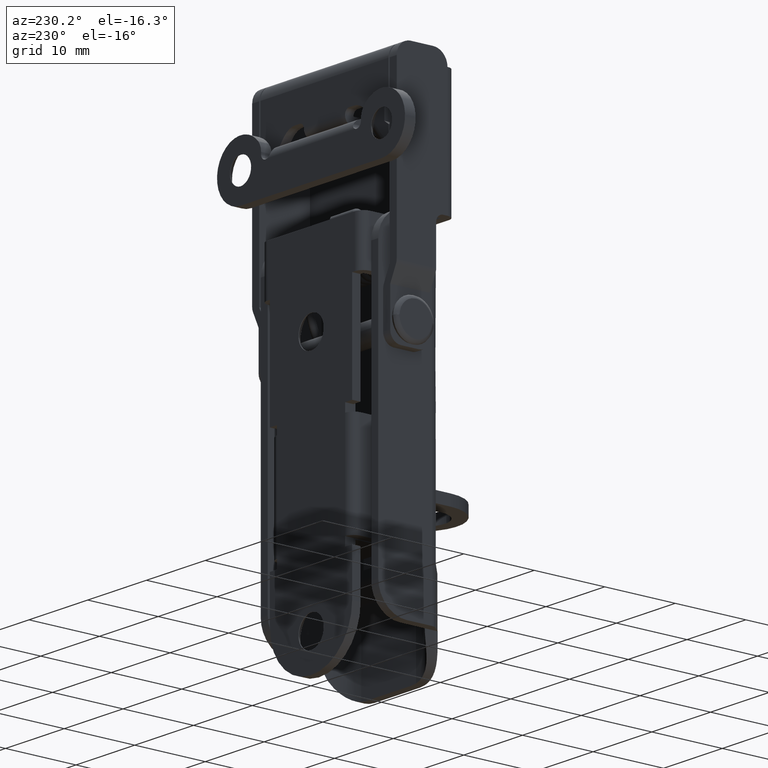
[diagram: clean part render]
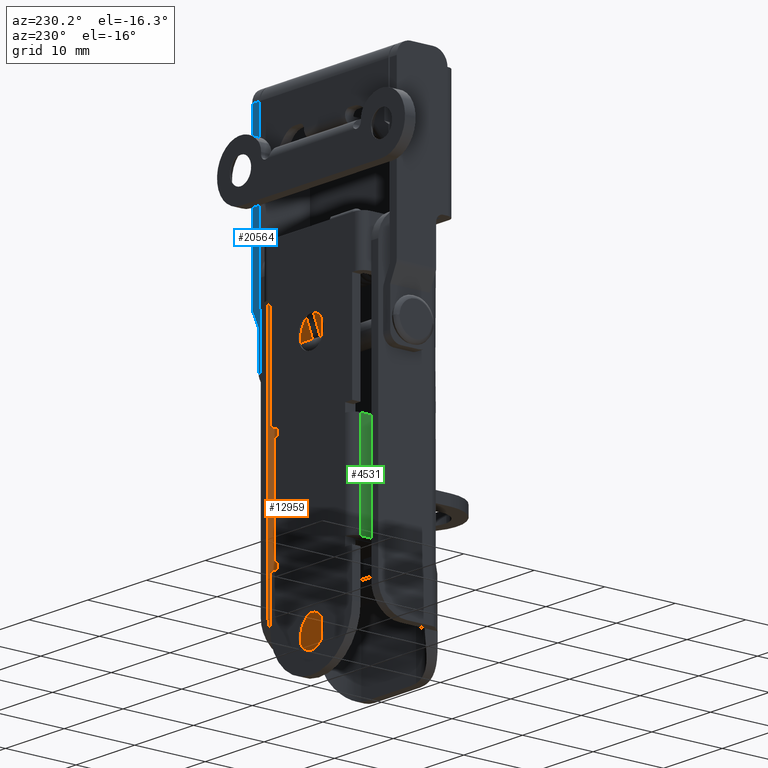
[diagram: same view with three faces highlighted in distinct colors, each labeled with its STEP entity id]
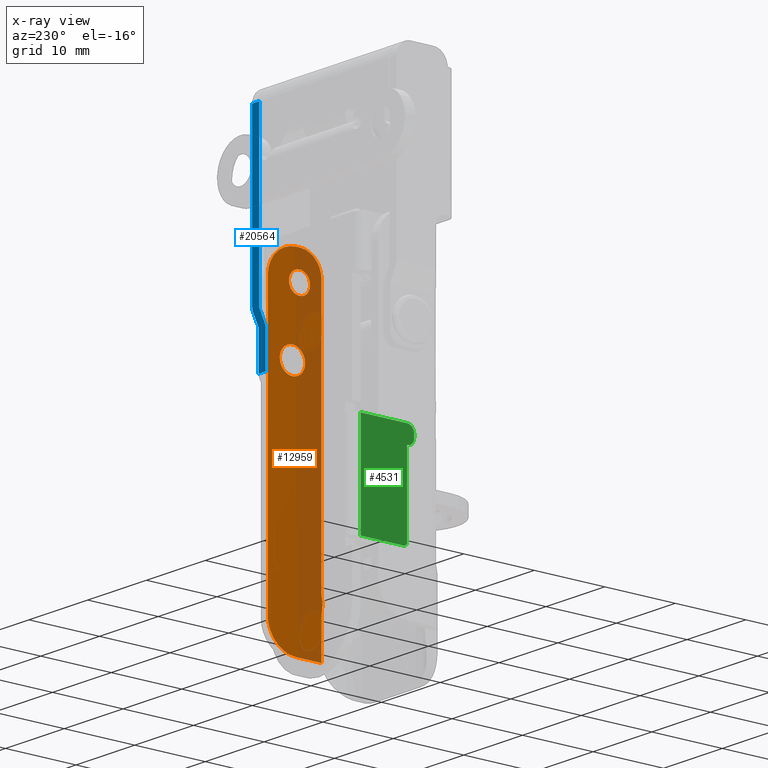
[diagram: x-ray of the same camera — body ghosted, the three highlighted faces saturated]
A machine part, auxiliary view with three faces highlighted in distinct colors.
The next image is the same camera in x-ray (body ghosted, the three faces saturated) — at least one of them is partly hidden behind the body in this view.
Their STEP definitions:

[orange] entity #12959 — the highlighted face is a freeform B-spline surface patch.
#9966=CARTESIAN_POINT('',(8.800000000000139,-2.900068538486594,-0.415707764269913));
#9967=VERTEX_POINT('',#9966);
#9968=CARTESIAN_POINT('',(8.800000000000141,-4.699999999998850,-2.200000000000205));
#9969=VERTEX_POINT('',#9968);
#9970=CARTESIAN_POINT('',(8.800000000000139,-2.900068538486594,-0.415707764269913));
#9971=CARTESIAN_POINT('',(8.800000000000139,-2.915639821297316,-2.200000000000204));
#9972=CARTESIAN_POINT('',(8.800000000000141,-4.699999999998850,-2.200000000000205));
#9980=(BOUNDED_CURVE()B_SPLINE_CURVE(2,(#9970,#9971,#9972),.UNSPECIFIED.,.F.,.U.)B_SPLINE_CURVE_WITH_KNOTS((3,3),(0.751539894371454,1.0),.UNSPECIFIED.)CURVE()GEOMETRIC_REPRESENTATION_ITEM()RATIONAL_B_SPLINE_CURVE((0.996414028016012,0.708910879662898,1.0))REPRESENTATION_ITEM(''));
#9981=EDGE_CURVE('',#9967,#9969,#9980,.T.);
#9983=CARTESIAN_POINT('',(8.800000000000141,-6.499931461511107,-0.384292235730496));
#9984=VERTEX_POINT('',#9983);
#9985=CARTESIAN_POINT('',(8.800000000000141,-4.699999999998850,-2.200000000000205));
#9986=CARTESIAN_POINT('',(8.800000000000141,-6.499999999998851,-2.200000000000205));
#9987=CARTESIAN_POINT('',(8.800000000000141,-6.499999999998851,-0.400000000000205));
#9988=CARTESIAN_POINT('',(8.800000000000141,-6.499999999998850,-0.392145968336613));
#9989=CARTESIAN_POINT('',(8.800000000000141,-6.499931461511106,-0.384292235730496));
#9997=(BOUNDED_CURVE()B_SPLINE_CURVE(2,(#9985,#9986,#9987,#9988,#9989),.UNSPECIFIED.,.F.,.U.)B_SPLINE_CURVE_WITH_KNOTS((3,2,3),(0.0,0.250000000000000,0.251539894371454),.UNSPECIFIED.)CURVE()GEOMETRIC_REPRESENTATION_ITEM()RATIONAL_B_SPLINE_CURVE((1.0,0.707106781186547,1.0,0.998195901523649,0.996414028016012))REPRESENTATION_ITEM(''));
#9998=EDGE_CURVE('',#9969,#9984,#9997,.T.);
#10065=CARTESIAN_POINT('',(8.800000000000141,-4.699999999998850,1.399999999999795));
#10066=VERTEX_POINT('',#10065);
#10067=CARTESIAN_POINT('',(8.800000000000141,-4.699999999998850,1.399999999999795));
#10068=CARTESIAN_POINT('',(8.800000000000141,-2.899999999998851,1.399999999999796));
#10069=CARTESIAN_POINT('',(8.800000000000141,-2.899999999998850,-0.400000000000205));
#10070=CARTESIAN_POINT('',(8.800000000000141,-2.899999999998851,-0.407854031663796));
#10071=CARTESIAN_POINT('',(8.800000000000139,-2.900068538486594,-0.415707764269913));
#10079=(BOUNDED_CURVE()B_SPLINE_CURVE(2,(#10067,#10068,#10069,#10070,#10071),.UNSPECIFIED.,.F.,.U.)B_SPLINE_CURVE_WITH_KNOTS((3,2,3),(0.500000000000000,0.750000000000000,0.751539894371454),.UNSPECIFIED.)CURVE()GEOMETRIC_REPRESENTATION_ITEM()RATIONAL_B_SPLINE_CURVE((1.0,0.707106781186547,1.0,0.998195901523649,0.996414028016012))REPRESENTATION_ITEM(''));
#10080=EDGE_CURVE('',#10066,#9967,#10079,.T.);
#10114=CARTESIAN_POINT('',(8.800000000000141,-6.499931461511106,-0.384292235730496));
#10115=CARTESIAN_POINT('',(8.800000000000141,-6.484360178700388,1.399999999999796));
#10116=CARTESIAN_POINT('',(8.800000000000141,-4.699999999998850,1.399999999999795));
#10124=(BOUNDED_CURVE()B_SPLINE_CURVE(2,(#10114,#10115,#10116),.UNSPECIFIED.,.F.,.U.)B_SPLINE_CURVE_WITH_KNOTS((3,3),(0.251539894371454,0.500000000000000),.UNSPECIFIED.)CURVE()GEOMETRIC_REPRESENTATION_ITEM()RATIONAL_B_SPLINE_CURVE((0.996414028016012,0.708910879662898,1.0))REPRESENTATION_ITEM(''));
#10125=EDGE_CURVE('',#9984,#10066,#10124,.T.);
#10469=CARTESIAN_POINT('',(8.800000000000182,-7.199942884593502,8.613089803653072));
#10470=VERTEX_POINT('',#10469);
#10476=CARTESIAN_POINT('',(8.800000000000180,-5.700000000000700,10.099999999999881));
#10477=VERTEX_POINT('',#10476);
#10478=CARTESIAN_POINT('',(8.800000000000178,-7.199942884593502,8.613089803653073));
#10479=CARTESIAN_POINT('',(8.800000000000180,-7.186966815491036,10.099999999999884));
#10480=CARTESIAN_POINT('',(8.800000000000180,-5.700000000000700,10.099999999999881));
#10488=(BOUNDED_CURVE()B_SPLINE_CURVE(2,(#10478,#10479,#10480),.UNSPECIFIED.,.F.,.U.)B_SPLINE_CURVE_WITH_KNOTS((3,3),(0.251539894382631,0.500000000000000),.UNSPECIFIED.)CURVE()GEOMETRIC_REPRESENTATION_ITEM()RATIONAL_B_SPLINE_CURVE((0.996414027990144,0.708910879675994,1.0))REPRESENTATION_ITEM(''));
#10489=EDGE_CURVE('',#10470,#10477,#10488,.T.);
#10491=CARTESIAN_POINT('',(8.800000000000180,-4.200057115407899,8.586910196346524));
#10492=VERTEX_POINT('',#10491);
#10493=CARTESIAN_POINT('',(8.800000000000180,-5.700000000000700,10.099999999999881));
#10494=CARTESIAN_POINT('',(8.800000000000180,-4.200000000000615,10.099999999999886));
#10495=CARTESIAN_POINT('',(8.800000000000180,-4.200000000000615,8.599999999999799));
#10496=CARTESIAN_POINT('',(8.800000000000180,-4.200000000000615,8.593454973565878));
#10497=CARTESIAN_POINT('',(8.800000000000180,-4.200057115407898,8.586910196346524));
#10505=(BOUNDED_CURVE()B_SPLINE_CURVE(2,(#10493,#10494,#10495,#10496,#10497),.UNSPECIFIED.,.F.,.U.)B_SPLINE_CURVE_WITH_KNOTS((3,2,3),(0.500000000000000,0.750000000000000,0.751539894382631),.UNSPECIFIED.)CURVE()GEOMETRIC_REPRESENTATION_ITEM()RATIONAL_B_SPLINE_CURVE((1.0,0.707106781186547,1.0,0.998195901510553,0.996414027990144))REPRESENTATION_ITEM(''));
#10506=EDGE_CURVE('',#10477,#10492,#10505,.T.);
#10582=CARTESIAN_POINT('',(8.800000000000180,-5.700000000000700,7.099999999999715));
#10583=VERTEX_POINT('',#10582);
#10584=CARTESIAN_POINT('',(8.800000000000178,-4.200057115407899,8.586910196346524));
#10585=CARTESIAN_POINT('',(8.800000000000180,-4.213033184510367,7.099999999999714));
#10586=CARTESIAN_POINT('',(8.800000000000180,-5.700000000000700,7.099999999999715));
#10594=(BOUNDED_CURVE()B_SPLINE_CURVE(2,(#10584,#10585,#10586),.UNSPECIFIED.,.F.,.U.)B_SPLINE_CURVE_WITH_KNOTS((3,3),(0.751539894382631,1.0),.UNSPECIFIED.)CURVE()GEOMETRIC_REPRESENTATION_ITEM()RATIONAL_B_SPLINE_CURVE((0.996414027990144,0.708910879675994,1.0))REPRESENTATION_ITEM(''));
#10595=EDGE_CURVE('',#10492,#10583,#10594,.T.);
#10597=CARTESIAN_POINT('',(8.800000000000180,-5.700000000000700,7.099999999999715));
#10598=CARTESIAN_POINT('',(8.800000000000180,-7.200000000000785,7.099999999999715));
#10599=CARTESIAN_POINT('',(8.800000000000180,-7.200000000000785,8.599999999999799));
#10600=CARTESIAN_POINT('',(8.800000000000182,-7.200000000000785,8.606545026433720));
#10601=CARTESIAN_POINT('',(8.800000000000182,-7.199942884593502,8.613089803653073));
#10609=(BOUNDED_CURVE()B_SPLINE_CURVE(2,(#10597,#10598,#10599,#10600,#10601),.UNSPECIFIED.,.F.,.U.)B_SPLINE_CURVE_WITH_KNOTS((3,2,3),(0.0,0.250000000000000,0.251539894382631),.UNSPECIFIED.)CURVE()GEOMETRIC_REPRESENTATION_ITEM()RATIONAL_B_SPLINE_CURVE((1.0,0.707106781186547,1.0,0.998195901510554,0.996414027990145))REPRESENTATION_ITEM(''));
#10610=EDGE_CURVE('',#10583,#10470,#10609,.T.);
#12423=CARTESIAN_POINT('',(8.800000000000141,-8.800000000000850,7.099999999999880));
#12424=VERTEX_POINT('',#12423);
#12749=CARTESIAN_POINT('',(8.800000000000141,-8.800000000000850,-26.203446452668800));
#12750=VERTEX_POINT('',#12749);
#12751=CARTESIAN_POINT('',(8.800000000000141,-8.800000000000850,7.099999999999880));
#12752=CARTESIAN_POINT('',(8.800000000000141,-8.800000000000850,-26.203446452668800));
#12753=QUASI_UNIFORM_CURVE('',1,(#12751,#12752),.UNSPECIFIED.,.F.,.U.);
#12754=EDGE_CURVE('',#12424,#12750,#12753,.T.);
#12836=CARTESIAN_POINT('',(8.800000000000180,-9.345173077610074,-36.327669909680147));
#12837=CARTESIAN_POINT('',(8.800000000000180,-0.812503834790699,-36.327669909680147));
#12838=CARTESIAN_POINT('',(8.800000000000180,-9.345173077610074,14.927671159589339));
#12839=CARTESIAN_POINT('',(8.800000000000180,-0.812503834790699,14.927671159589339));
#12840=B_SPLINE_SURFACE_WITH_KNOTS('',1,1,((#12836,#12838),(#12837,#12839)),.UNSPECIFIED.,.F.,.F.,.U.,(2,2),(2,2),(0.0,8.532669242819376),(0.0,51.255341069269498),.UNSPECIFIED.);
#12841=CARTESIAN_POINT('',(8.800000000000001,-8.800000000000850,-34.0));
#12842=VERTEX_POINT('',#12841);
#12843=CARTESIAN_POINT('',(8.800000000000141,-5.200000000000730,-34.0));
#12844=VERTEX_POINT('',#12843);
#12845=CARTESIAN_POINT('',(8.800000000000001,-8.800000000000850,-34.0));
#12846=CARTESIAN_POINT('',(8.800000000000141,-5.200000000000730,-34.0));
#12847=QUASI_UNIFORM_CURVE('',1,(#12845,#12846),.UNSPECIFIED.,.F.,.U.);
#12848=EDGE_CURVE('',#12842,#12844,#12847,.T.);
#12849=ORIENTED_EDGE('',*,*,#12848,.F.);
#12850=CARTESIAN_POINT('',(8.800000000000001,-8.800000000000850,-28.840769031663552));
#12851=VERTEX_POINT('',#12850);
#12852=CARTESIAN_POINT('',(8.800000000000001,-8.800000000000850,-34.0));
#12853=CARTESIAN_POINT('',(8.800000000000001,-8.800000000000850,-28.840769031663552));
#12854=QUASI_UNIFORM_CURVE('',1,(#12852,#12853),.UNSPECIFIED.,.F.,.U.);
#12855=EDGE_CURVE('',#12842,#12851,#12854,.T.);
#12856=ORIENTED_EDGE('',*,*,#12855,.T.);
#12857=CARTESIAN_POINT('',(8.800000000000001,-8.800000000000850,-28.840769031663552));
#12858=CARTESIAN_POINT('',(8.800000000000003,-8.800000000001033,-28.617792507020290));
#12859=CARTESIAN_POINT('',(8.800000000000180,-8.820109392774489,-28.396972881214310));
#12860=CARTESIAN_POINT('',(8.800000000000180,-8.863850508331808,-28.067199690974920));
#12861=CARTESIAN_POINT('',(8.800000000000182,-8.880660553997705,-27.957514445201848));
#12862=CARTESIAN_POINT('',(8.800000000000182,-8.913749748037089,-27.738087010526382));
#12863=CARTESIAN_POINT('',(8.800000000000182,-8.930105651277330,-27.628335743417271));
#12864=CARTESIAN_POINT('',(8.800000000000180,-8.953622816582797,-27.407916886384552));
#12865=CARTESIAN_POINT('',(8.800000000000178,-8.960513037666896,-27.297920231145209));
#12866=CARTESIAN_POINT('',(8.800000000000182,-8.954576681257068,-27.133636407541221));
#12867=CARTESIAN_POINT('',(8.800000000000184,-8.949847615084858,-27.078995334891641));
#12868=CARTESIAN_POINT('',(8.800000000000178,-8.934511715854207,-26.969970079247069));
#12869=CARTESIAN_POINT('',(8.800000000000178,-8.923848054699716,-26.915574298456740));
#12870=CARTESIAN_POINT('',(8.800000000000184,-8.899049875227584,-26.806992426806371));
#12871=CARTESIAN_POINT('',(8.800000000000182,-8.885088593307929,-26.752966974165179));
#12872=CARTESIAN_POINT('',(8.800000000000180,-8.858299003777654,-26.644723528150521));
#12873=CARTESIAN_POINT('',(8.800000000000178,-8.845516734520531,-26.590497710894191));
#12874=CARTESIAN_POINT('',(8.800000000000180,-8.813260591781507,-26.426785194961909));
#12875=CARTESIAN_POINT('',(8.800000000000178,-8.800000000000878,-26.316242594312790));
#12876=CARTESIAN_POINT('',(8.800000000000180,-8.800000000000850,-26.203446452668800));
#12877=B_SPLINE_CURVE_WITH_KNOTS('',3,(#12857,#12858,#12859,#12860,#12861,#12862,#12863,#12864,#12865,#12866,#12867,#12868,#12869,#12870,#12871,#12872,#12873,#12874,#12875,#12876),.UNSPECIFIED.,.F.,.U.,(4,2,2,2,2,2,2,2,2,4),(0.0,0.250000000000002,0.375000000000001,0.500000000000000,0.624999999999999,0.687499999999999,0.749999999999998,0.812499999999998,0.874999999999997,1.0),.UNSPECIFIED.);
#12878=EDGE_CURVE('',#12851,#12750,#12877,.T.);
#12879=ORIENTED_EDGE('',*,*,#12878,.T.);
#12880=ORIENTED_EDGE('',*,*,#12754,.F.);
#12881=CARTESIAN_POINT('',(8.800000000000141,-8.800000000001031,9.599999999999310));
#12882=VERTEX_POINT('',#12881);
#12883=CARTESIAN_POINT('',(8.800000000000141,-8.800000000001031,9.599999999999310));
#12884=CARTESIAN_POINT('',(8.800000000000141,-8.800000000000850,7.099999999999880));
#12885=QUASI_UNIFORM_CURVE('',1,(#12883,#12884),.UNSPECIFIED.,.F.,.U.);
#12886=EDGE_CURVE('',#12882,#12424,#12885,.T.);
#12887=ORIENTED_EDGE('',*,*,#12886,.F.);
#12888=CARTESIAN_POINT('',(8.800000000000141,-5.800000000001030,12.599999999999300));
#12889=VERTEX_POINT('',#12888);
#12890=CARTESIAN_POINT('',(8.800000000000141,-5.800000000001030,12.599999999999310));
#12891=CARTESIAN_POINT('',(8.800000000000141,-8.800000000001029,12.599999999999310));
#12892=CARTESIAN_POINT('',(8.800000000000141,-8.800000000001029,9.599999999999310));
#12900=(BOUNDED_CURVE()B_SPLINE_CURVE(2,(#12890,#12891,#12892),.UNSPECIFIED.,.F.,.U.)CURVE()GEOMETRIC_REPRESENTATION_ITEM()QUASI_UNIFORM_CURVE()RATIONAL_B_SPLINE_CURVE((1.0,0.707106781186548,1.0))REPRESENTATION_ITEM(''));
#12901=EDGE_CURVE('',#12889,#12882,#12900,.T.);
#12902=ORIENTED_EDGE('',*,*,#12901,.F.);
#12903=CARTESIAN_POINT('',(8.800000000000141,-5.200000000001130,12.599999999999801));
#12904=VERTEX_POINT('',#12903);
#12905=CARTESIAN_POINT('',(8.800000000000141,-5.200000000001130,12.599999999999801));
#12906=CARTESIAN_POINT('',(8.800000000000141,-5.800000000001030,12.599999999999300));
#12907=QUASI_UNIFORM_CURVE('',1,(#12905,#12906),.UNSPECIFIED.,.F.,.U.);
#12908=EDGE_CURVE('',#12904,#12889,#12907,.T.);
#12909=ORIENTED_EDGE('',*,*,#12908,.F.);
#12910=CARTESIAN_POINT('',(8.800000000000141,-1.199999999999818,8.599999999999799));
#12911=VERTEX_POINT('',#12910);
#12912=CARTESIAN_POINT('',(8.800000000000141,-1.199999999999818,8.599999999999799));
#12913=CARTESIAN_POINT('',(8.800000000000141,-1.200000000001130,12.599999999999795));
#12914=CARTESIAN_POINT('',(8.800000000000141,-5.200000000001130,12.599999999999801));
#12922=(BOUNDED_CURVE()B_SPLINE_CURVE(2,(#12912,#12913,#12914),.UNSPECIFIED.,.F.,.U.)CURVE()GEOMETRIC_REPRESENTATION_ITEM()QUASI_UNIFORM_CURVE()RATIONAL_B_SPLINE_CURVE((1.0,0.707106781186548,1.0))REPRESENTATION_ITEM(''));
#12923=EDGE_CURVE('',#12911,#12904,#12922,.T.);
#12924=ORIENTED_EDGE('',*,*,#12923,.F.);
#12925=CARTESIAN_POINT('',(8.800000000000141,-1.200000000000670,-30.0));
#12926=VERTEX_POINT('',#12925);
#12927=CARTESIAN_POINT('',(8.800000000000141,-1.200000000000670,-30.0));
#12928=CARTESIAN_POINT('',(8.800000000000141,-1.199999999999818,8.599999999999799));
#12929=QUASI_UNIFORM_CURVE('',1,(#12927,#12928),.UNSPECIFIED.,.F.,.U.);
#12930=EDGE_CURVE('',#12926,#12911,#12929,.T.);
#12931=ORIENTED_EDGE('',*,*,#12930,.F.);
#12932=CARTESIAN_POINT('',(8.800000000000141,-5.200000000000669,-34.0));
#12933=CARTESIAN_POINT('',(8.800000000000141,-1.200000000000669,-34.000000000000007));
#12934=CARTESIAN_POINT('',(8.800000000000141,-1.200000000000669,-30.0));
#12942=(BOUNDED_CURVE()B_SPLINE_CURVE(2,(#12932,#12933,#12934),.UNSPECIFIED.,.F.,.U.)CURVE()GEOMETRIC_REPRESENTATION_ITEM()QUASI_UNIFORM_CURVE()RATIONAL_B_SPLINE_CURVE((1.0,0.707106781186548,1.0))REPRESENTATION_ITEM(''));
#12943=EDGE_CURVE('',#12844,#12926,#12942,.T.);
#12944=ORIENTED_EDGE('',*,*,#12943,.F.);
#12945=EDGE_LOOP('',(#12849,#12856,#12879,#12880,#12887,#12902,#12909,#12924,#12931,#12944));
#12946=FACE_OUTER_BOUND('',#12945,.T.);
#12947=ORIENTED_EDGE('',*,*,#10506,.F.);
#12948=ORIENTED_EDGE('',*,*,#10489,.F.);
#12949=ORIENTED_EDGE('',*,*,#10610,.F.);
#12950=ORIENTED_EDGE('',*,*,#10595,.F.);
#12951=EDGE_LOOP('',(#12947,#12948,#12949,#12950));
#12952=FACE_BOUND('',#12951,.T.);
#12953=ORIENTED_EDGE('',*,*,#9998,.F.);
#12954=ORIENTED_EDGE('',*,*,#9981,.F.);
#12955=ORIENTED_EDGE('',*,*,#10080,.F.);
#12956=ORIENTED_EDGE('',*,*,#10125,.F.);
#12957=EDGE_LOOP('',(#12953,#12954,#12955,#12956));
#12958=FACE_BOUND('',#12957,.T.);
#12959=ADVANCED_FACE('',(#12946,#12952,#12958),#12840,.F.);

[blue] entity #20564 — the highlighted face is a freeform B-spline surface patch.
#19960=CARTESIAN_POINT('',(12.299999999998301,-1.900000000082060,29.000000000006601));
#19961=VERTEX_POINT('',#19960);
#19975=CARTESIAN_POINT('',(11.099999999998220,-1.900000000082060,29.000000000006601));
#19976=VERTEX_POINT('',#19975);
#19977=CARTESIAN_POINT('',(11.099999999998220,-1.900000000082060,29.000000000006601));
#19978=CARTESIAN_POINT('',(12.299999999998301,-1.900000000082060,29.000000000006601));
#19979=QUASI_UNIFORM_CURVE('',1,(#19977,#19978),.UNSPECIFIED.,.F.,.U.);
#19980=EDGE_CURVE('',#19976,#19961,#19979,.T.);
#20015=CARTESIAN_POINT('',(11.099999999998140,-1.899999999995240,5.608228118548711));
#20016=VERTEX_POINT('',#20015);
#20017=CARTESIAN_POINT('',(11.099999999998140,-1.899999999995240,5.608228118548711));
#20018=CARTESIAN_POINT('',(11.099999999998220,-1.900000000082060,29.000000000006601));
#20019=QUASI_UNIFORM_CURVE('',1,(#20017,#20018),.UNSPECIFIED.,.F.,.U.);
#20020=EDGE_CURVE('',#20016,#19976,#20019,.T.);
#20106=CARTESIAN_POINT('',(12.299999999998340,-1.899999999995240,5.879544813120500));
#20107=VERTEX_POINT('',#20106);
#20113=CARTESIAN_POINT('',(12.299999999998340,-1.899999999995240,5.879544813120500));
#20114=CARTESIAN_POINT('',(12.299999999998301,-1.900000000082060,29.000000000006601));
#20115=QUASI_UNIFORM_CURVE('',1,(#20113,#20114),.UNSPECIFIED.,.F.,.U.);
#20116=EDGE_CURVE('',#20107,#19961,#20115,.T.);
#20268=CARTESIAN_POINT('',(11.200000000021960,-1.899999999995240,-1.900000000041890));
#20269=VERTEX_POINT('',#20268);
#20289=CARTESIAN_POINT('',(10.0,-1.899999999995240,-1.900000000040385));
#20290=VERTEX_POINT('',#20289);
#20303=CARTESIAN_POINT('',(11.200000000021960,-1.899999999995240,-1.900000000041890));
#20304=CARTESIAN_POINT('',(10.0,-1.899999999995240,-1.900000000040385));
#20305=QUASI_UNIFORM_CURVE('',1,(#20303,#20304),.UNSPECIFIED.,.F.,.U.);
#20306=EDGE_CURVE('',#20269,#20290,#20305,.T.);
#20382=CARTESIAN_POINT('',(10.116721134388859,-1.899999999995240,3.544926367563660));
#20383=VERTEX_POINT('',#20382);
#20384=CARTESIAN_POINT('',(10.116721134388859,-1.899999999995240,3.544926367563660));
#20385=CARTESIAN_POINT('',(11.099999999998140,-1.899999999995240,5.608228118548711));
#20386=QUASI_UNIFORM_CURVE('',1,(#20384,#20385),.UNSPECIFIED.,.F.,.U.);
#20387=EDGE_CURVE('',#20383,#20016,#20386,.T.);
#20413=CARTESIAN_POINT('',(10.0,-1.899999999995240,3.028683305376090));
#20414=VERTEX_POINT('',#20413);
#20415=CARTESIAN_POINT('',(10.116721134388870,-1.899999999995240,3.544926367563654));
#20416=CARTESIAN_POINT('',(10.000000000029299,-1.899999999995240,3.299999999953963));
#20417=CARTESIAN_POINT('',(10.000000000029299,-1.899999999995240,3.028683305376090));
#20425=(BOUNDED_CURVE()B_SPLINE_CURVE(2,(#20415,#20416,#20417),.UNSPECIFIED.,.F.,.U.)CURVE()GEOMETRIC_REPRESENTATION_ITEM()QUASI_UNIFORM_CURVE()RATIONAL_B_SPLINE_CURVE((1.0,0.975380025434622,1.0))REPRESENTATION_ITEM(''));
#20426=EDGE_CURVE('',#20383,#20414,#20425,.T.);
#20443=CARTESIAN_POINT('',(10.0,-1.899999999995240,-1.900000000040385));
#20444=CARTESIAN_POINT('',(10.0,-1.899999999995240,3.028683305376090));
#20445=QUASI_UNIFORM_CURVE('',1,(#20443,#20444),.UNSPECIFIED.,.F.,.U.);
#20446=EDGE_CURVE('',#20290,#20414,#20445,.T.);
#20487=CARTESIAN_POINT('',(12.183278865638540,-1.899999999995240,5.363301750936559));
#20488=VERTEX_POINT('',#20487);
#20489=CARTESIAN_POINT('',(11.200000000029400,-1.899999999995240,3.299999999953600));
#20490=VERTEX_POINT('',#20489);
#20491=CARTESIAN_POINT('',(12.183278865638540,-1.899999999995240,5.363301750936559));
#20492=CARTESIAN_POINT('',(11.200000000029400,-1.899999999995240,3.299999999953600));
#20493=QUASI_UNIFORM_CURVE('',1,(#20491,#20492),.UNSPECIFIED.,.F.,.U.);
#20494=EDGE_CURVE('',#20488,#20490,#20493,.T.);
#20524=CARTESIAN_POINT('',(12.183278865638529,-1.899999999995240,5.363301750936564));
#20525=CARTESIAN_POINT('',(12.299999999997299,-1.899999999995240,5.608228118544529));
#20526=CARTESIAN_POINT('',(12.299999999998141,-1.899999999995240,5.879544813120500));
#20534=(BOUNDED_CURVE()B_SPLINE_CURVE(2,(#20524,#20525,#20526),.UNSPECIFIED.,.F.,.U.)CURVE()GEOMETRIC_REPRESENTATION_ITEM()QUASI_UNIFORM_CURVE()RATIONAL_B_SPLINE_CURVE((1.0,0.975380025434955,1.0))REPRESENTATION_ITEM(''));
#20535=EDGE_CURVE('',#20488,#20107,#20534,.T.);
#20543=CARTESIAN_POINT('',(9.885115004457930,-1.899999999990864,-3.443454940154117));
#20544=CARTESIAN_POINT('',(9.885115004457930,-1.900000000086398,30.543455768921419));
#20545=CARTESIAN_POINT('',(12.414885057231221,-1.899999999990864,-3.443454940154117));
#20546=CARTESIAN_POINT('',(12.414885057231221,-1.900000000086398,30.543455768921419));
#20547=B_SPLINE_SURFACE_WITH_KNOTS('',1,1,((#20543,#20545),(#20544,#20546)),.UNSPECIFIED.,.F.,.F.,.U.,(2,2),(2,2),(0.0,33.986910709075531),(0.0,2.529770052773289),.UNSPECIFIED.);
#20548=CARTESIAN_POINT('',(11.200000000029400,-1.899999999995240,3.299999999953600));
#20549=CARTESIAN_POINT('',(11.200000000021960,-1.899999999995240,-1.900000000041890));
#20550=QUASI_UNIFORM_CURVE('',1,(#20548,#20549),.UNSPECIFIED.,.F.,.U.);
#20551=EDGE_CURVE('',#20490,#20269,#20550,.T.);
#20552=ORIENTED_EDGE('',*,*,#20551,.T.);
#20553=ORIENTED_EDGE('',*,*,#20306,.T.);
#20554=ORIENTED_EDGE('',*,*,#20446,.T.);
#20555=ORIENTED_EDGE('',*,*,#20426,.F.);
#20556=ORIENTED_EDGE('',*,*,#20387,.T.);
#20557=ORIENTED_EDGE('',*,*,#20020,.T.);
#20558=ORIENTED_EDGE('',*,*,#19980,.T.);
#20559=ORIENTED_EDGE('',*,*,#20116,.F.);
#20560=ORIENTED_EDGE('',*,*,#20535,.F.);
#20561=ORIENTED_EDGE('',*,*,#20494,.T.);
#20562=EDGE_LOOP('',(#20552,#20553,#20554,#20555,#20556,#20557,#20558,#20559,#20560,#20561));
#20563=FACE_OUTER_BOUND('',#20562,.T.);
#20564=ADVANCED_FACE('',(#20563),#20547,.T.);

[green] entity #4531 — the highlighted face is a freeform B-spline surface patch.
#2648=CARTESIAN_POINT('',(-7.0,-8.800000000000001,-11.500000000000000));
#2649=VERTEX_POINT('',#2648);
#2655=CARTESIAN_POINT('',(-7.0,-8.799999999999871,-12.0));
#2656=VERTEX_POINT('',#2655);
#2657=CARTESIAN_POINT('',(-7.0,-8.799999999999871,-12.0));
#2658=CARTESIAN_POINT('',(-7.0,-8.800000000000001,-11.500000000000000));
#2659=QUASI_UNIFORM_CURVE('',1,(#2657,#2658),.UNSPECIFIED.,.F.,.U.);
#2660=EDGE_CURVE('',#2656,#2649,#2659,.T.);
#2700=CARTESIAN_POINT('',(-7.0,-7.799999999999869,-13.0));
#2701=VERTEX_POINT('',#2700);
#2702=CARTESIAN_POINT('',(-7.0,-8.799999999999871,-12.0));
#2703=CARTESIAN_POINT('',(-6.999999999999999,-8.799999999999871,-13.000000000000004));
#2704=CARTESIAN_POINT('',(-7.0,-7.799999999999869,-13.0));
#2712=(BOUNDED_CURVE()B_SPLINE_CURVE(2,(#2702,#2703,#2704),.UNSPECIFIED.,.F.,.U.)CURVE()GEOMETRIC_REPRESENTATION_ITEM()QUASI_UNIFORM_CURVE()RATIONAL_B_SPLINE_CURVE((1.0,0.707106781186548,1.0))REPRESENTATION_ITEM(''));
#2713=EDGE_CURVE('',#2656,#2701,#2712,.T.);
#2736=CARTESIAN_POINT('',(-7.0,-7.799999999999869,-24.0));
#2737=VERTEX_POINT('',#2736);
#2738=CARTESIAN_POINT('',(-7.0,-7.799999999999869,-24.0));
#2739=CARTESIAN_POINT('',(-7.0,-7.799999999999869,-13.0));
#2740=QUASI_UNIFORM_CURVE('',1,(#2738,#2739),.UNSPECIFIED.,.F.,.U.);
#2741=EDGE_CURVE('',#2737,#2701,#2740,.T.);
#2781=CARTESIAN_POINT('',(-7.0,-7.299999999999870,-24.500000000000000));
#2782=VERTEX_POINT('',#2781);
#2783=CARTESIAN_POINT('',(-7.0,-7.799999999999869,-24.0));
#2784=CARTESIAN_POINT('',(-6.999999999999999,-7.799999999999868,-24.500000000000004));
#2785=CARTESIAN_POINT('',(-7.0,-7.299999999999870,-24.500000000000000));
#2793=(BOUNDED_CURVE()B_SPLINE_CURVE(2,(#2783,#2784,#2785),.UNSPECIFIED.,.F.,.U.)CURVE()GEOMETRIC_REPRESENTATION_ITEM()QUASI_UNIFORM_CURVE()RATIONAL_B_SPLINE_CURVE((1.0,0.707106781186548,1.0))REPRESENTATION_ITEM(''));
#2794=EDGE_CURVE('',#2737,#2782,#2793,.T.);
#2809=CARTESIAN_POINT('',(-7.0,-1.200000000000000,-24.500000000000000));
#2810=VERTEX_POINT('',#2809);
#2811=CARTESIAN_POINT('',(-7.0,-1.200000000000000,-24.500000000000000));
#2812=CARTESIAN_POINT('',(-7.0,-7.299999999999870,-24.500000000000000));
#2813=QUASI_UNIFORM_CURVE('',1,(#2811,#2812),.UNSPECIFIED.,.F.,.U.);
#2814=EDGE_CURVE('',#2810,#2782,#2813,.T.);
#4196=CARTESIAN_POINT('',(-7.0,-1.200000000000000,-10.500000000000000));
#4197=VERTEX_POINT('',#4196);
#4217=CARTESIAN_POINT('',(-7.0,-1.200000000000000,-10.500000000000000));
#4218=CARTESIAN_POINT('',(-7.0,-1.200000000000000,-24.500000000000000));
#4219=QUASI_UNIFORM_CURVE('',1,(#4217,#4218),.UNSPECIFIED.,.F.,.U.);
#4220=EDGE_CURVE('',#4197,#2810,#4219,.T.);
#4498=CARTESIAN_POINT('',(-7.0,-9.179619985269726,-9.800700027134715));
#4499=CARTESIAN_POINT('',(-7.0,-0.820379810882390,-9.800700027134715));
#4500=CARTESIAN_POINT('',(-7.0,-9.179619985269726,-25.199300348374550));
#4501=CARTESIAN_POINT('',(-7.0,-0.820379810882390,-25.199300348374550));
#4502=B_SPLINE_SURFACE_WITH_KNOTS('',1,1,((#4498,#4500),(#4499,#4501)),.UNSPECIFIED.,.F.,.F.,.U.,(2,2),(2,2),(0.0,8.359240174387336),(0.0,15.398600321239829),.UNSPECIFIED.);
#4503=CARTESIAN_POINT('',(-7.0,-7.800000000000000,-10.500000000000000));
#4504=VERTEX_POINT('',#4503);
#4505=CARTESIAN_POINT('',(-7.0,-7.800000000000000,-10.500000000000000));
#4506=CARTESIAN_POINT('',(-7.0,-1.200000000000000,-10.500000000000000));
#4507=QUASI_UNIFORM_CURVE('',1,(#4505,#4506),.UNSPECIFIED.,.F.,.U.);
#4508=EDGE_CURVE('',#4504,#4197,#4507,.T.);
#4509=ORIENTED_EDGE('',*,*,#4508,.T.);
#4510=ORIENTED_EDGE('',*,*,#4220,.T.);
#4511=ORIENTED_EDGE('',*,*,#2814,.T.);
#4512=ORIENTED_EDGE('',*,*,#2794,.F.);
#4513=ORIENTED_EDGE('',*,*,#2741,.T.);
#4514=ORIENTED_EDGE('',*,*,#2713,.F.);
#4515=ORIENTED_EDGE('',*,*,#2660,.T.);
#4516=CARTESIAN_POINT('',(-7.0,-7.800000000000000,-10.500000000000000));
#4517=CARTESIAN_POINT('',(-7.000000000000001,-8.799999999999871,-10.500000000000131));
#4518=CARTESIAN_POINT('',(-7.0,-8.799999999999871,-11.500000000000000));
#4526=(BOUNDED_CURVE()B_SPLINE_CURVE(2,(#4516,#4517,#4518),.UNSPECIFIED.,.F.,.U.)CURVE()GEOMETRIC_REPRESENTATION_ITEM()QUASI_UNIFORM_CURVE()RATIONAL_B_SPLINE_CURVE((1.0,0.707106781186594,1.0))REPRESENTATION_ITEM(''));
#4527=EDGE_CURVE('',#4504,#2649,#4526,.T.);
#4528=ORIENTED_EDGE('',*,*,#4527,.F.);
#4529=EDGE_LOOP('',(#4509,#4510,#4511,#4512,#4513,#4514,#4515,#4528));
#4530=FACE_OUTER_BOUND('',#4529,.T.);
#4531=ADVANCED_FACE('',(#4530),#4502,.T.);